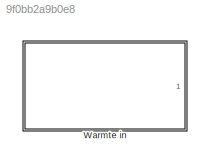
MODEL slx_9f0bb2a9b0e8
KIND library
CONFIG AbsTol = auto
CONFIG EnableMultiTasking = off
CONFIG FixedStep = auto
CONFIG MaxStep = auto
CONFIG MinStep = auto
CONFIG RelTol = 1e-3
CONFIG SampleTimeConstraint = Unconstrained
CONFIG SolverName = VariableStepAuto
CONFIG StartTime = 0.0
CONFIG StopTime = 10.0
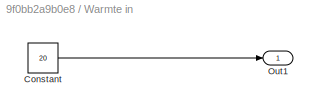
BLOCK [SubSystem] Warmte in
  Ports = [0, 1]
  RequestExecContextInheritance = off
BLOCK [Constant] Warmte in/Constant
  Value = 20
BLOCK [Outport] Warmte in/Out1
LINE Warmte in/Constant:1 -> Warmte in/Out1:1
